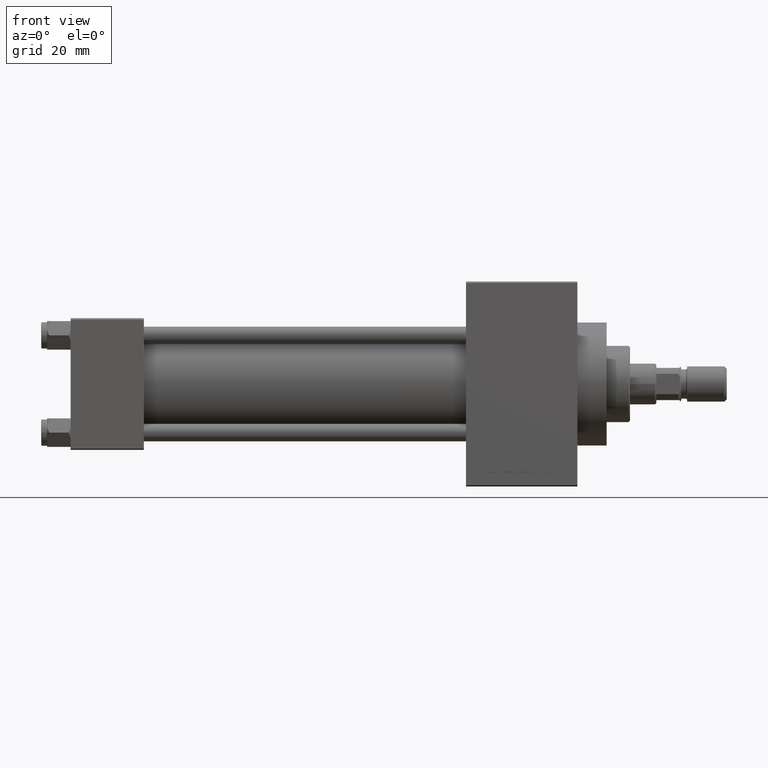
[diagram: clean part render]
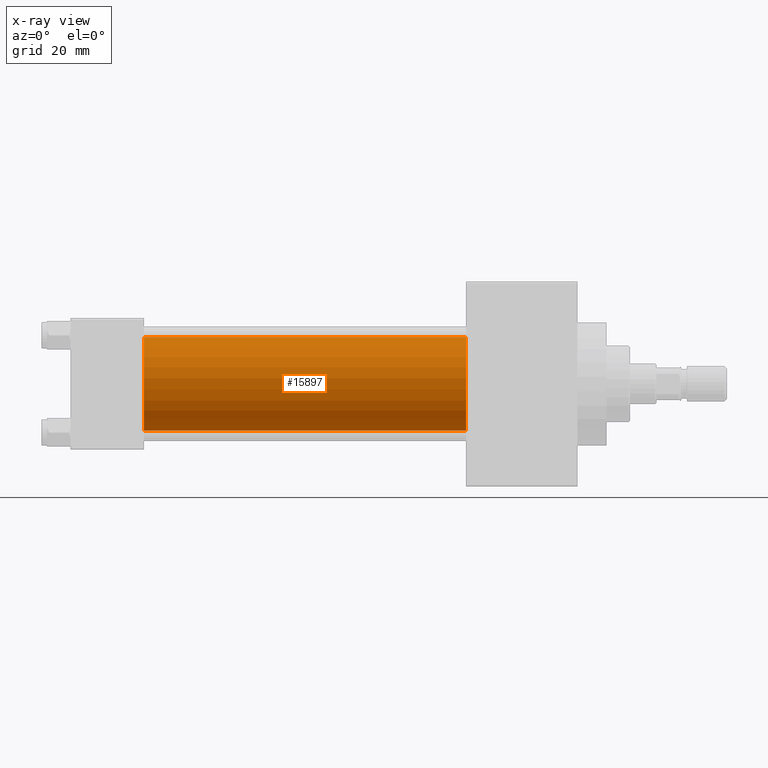
[diagram: x-ray — body ghosted, one internal face saturated and labeled with its STEP entity id]
A machine part, front view, then the same camera in x-ray: the body is ghosted and one INTERNAL B-rep face — a face not visible from any outside direction — is saturated and labeled: STEP entity #15897.
In plain terms, the highlighted cylindrical surface (partial cylindrical patch) has radius 16 mm, axis along (-1, -0, -0).
Its self-contained STEP definition (entity closure, byte-faithful):
#2717 = ORIENTED_EDGE ( 'NONE', *, *, #35577, .F. ) ;
#4424 = ORIENTED_EDGE ( 'NONE', *, *, #42649, .T. ) ;
#5087 = AXIS2_PLACEMENT_3D ( 'NONE', #7043, #41607, #44598 ) ;
#7043 = CARTESIAN_POINT ( 'NONE',  ( 135.0000000000000000, -2.602085213965210642E-15, 0.000000000000000000 ) ) ;
#9647 = CARTESIAN_POINT ( 'NONE',  ( 135.0000000000000000, -6.426503353294456087E-16, -16.00000000000000000 ) ) ;
#11196 = CARTESIAN_POINT ( 'NONE',  ( 135.0000000000000000, -2.602085213965210642E-15, 0.000000000000000000 ) ) ;
#12206 = VERTEX_POINT ( 'NONE', #16719 ) ;
#12432 = CIRCLE ( 'NONE', #34815, 16.00000000000000000 ) ;
#13417 = LINE ( 'NONE', #9647, #47521 ) ;
#13652 = DIRECTION ( 'NONE',  ( -1.000000000000000000, -0.000000000000000000, -0.000000000000000000 ) ) ;
#14081 = FACE_OUTER_BOUND ( 'NONE', #38628, .T. ) ;
#14405 = LINE ( 'NONE', #29172, #39449 ) ;
#15897 = ADVANCED_FACE ( 'NONE', ( #14081 ), #26101, .F. ) ;
#16357 = VERTEX_POINT ( 'NONE', #32961 ) ;
#16719 = CARTESIAN_POINT ( 'NONE',  ( 135.0000000000000000, -2.602085213965210642E-15, 16.00000000000000000 ) ) ;
#17194 = DIRECTION ( 'NONE',  ( -1.000000000000000000, -0.000000000000000000, -0.000000000000000000 ) ) ;
#19444 = VERTEX_POINT ( 'NONE', #35828 ) ;
#19518 = ORIENTED_EDGE ( 'NONE', *, *, #41360, .T. ) ;
#19876 = CARTESIAN_POINT ( 'NONE',  ( 25.00000000000000000, -2.602085213965210642E-15, 0.000000000000000000 ) ) ;
#23398 = CARTESIAN_POINT ( 'NONE',  ( 135.0000000000000000, -6.426503353294456087E-16, -16.00000000000000000 ) ) ;
#26101 = CYLINDRICAL_SURFACE ( 'NONE', #5087, 16.00000000000000000 ) ;
#26726 = DIRECTION ( 'NONE',  ( 0.000000000000000000, 0.000000000000000000, -1.000000000000000000 ) ) ;
#27726 = CIRCLE ( 'NONE', #37286, 16.00000000000000000 ) ;
#27863 = DIRECTION ( 'NONE',  ( 0.000000000000000000, 0.000000000000000000, -1.000000000000000000 ) ) ;
#28100 = DIRECTION ( 'NONE',  ( 1.000000000000000000, 0.000000000000000000, 0.000000000000000000 ) ) ;
#29172 = CARTESIAN_POINT ( 'NONE',  ( 135.0000000000000000, -2.602085213965210642E-15, 16.00000000000000000 ) ) ;
#32961 = CARTESIAN_POINT ( 'NONE',  ( 25.00000000000000000, -6.426503353294456087E-16, -16.00000000000000000 ) ) ;
#34480 = DIRECTION ( 'NONE',  ( 1.000000000000000000, 0.000000000000000000, 0.000000000000000000 ) ) ;
#34815 = AXIS2_PLACEMENT_3D ( 'NONE', #11196, #34480, #26726 ) ;
#35577 = EDGE_CURVE ( 'NONE', #12206, #19444, #14405, .T. ) ;
#35828 = CARTESIAN_POINT ( 'NONE',  ( 25.00000000000000000, -2.602085213965210642E-15, 16.00000000000000000 ) ) ;
#37286 = AXIS2_PLACEMENT_3D ( 'NONE', #19876, #28100, #27863 ) ;
#38628 = EDGE_LOOP ( 'NONE', ( #4424, #19518, #46505, #2717 ) ) ;
#39171 = VERTEX_POINT ( 'NONE', #23398 ) ;
#39449 = VECTOR ( 'NONE', #13652, 1000.000000000000000 ) ;
#41360 = EDGE_CURVE ( 'NONE', #39171, #16357, #13417, .T. ) ;
#41607 = DIRECTION ( 'NONE',  ( -1.000000000000000000, -0.000000000000000000, -0.000000000000000000 ) ) ;
#42649 = EDGE_CURVE ( 'NONE', #12206, #39171, #12432, .T. ) ;
#44598 = DIRECTION ( 'NONE',  ( 0.000000000000000000, 0.000000000000000000, 1.000000000000000000 ) ) ;
#46159 = EDGE_CURVE ( 'NONE', #19444, #16357, #27726, .T. ) ;
#46505 = ORIENTED_EDGE ( 'NONE', *, *, #46159, .F. ) ;
#47521 = VECTOR ( 'NONE', #17194, 1000.000000000000000 ) ;